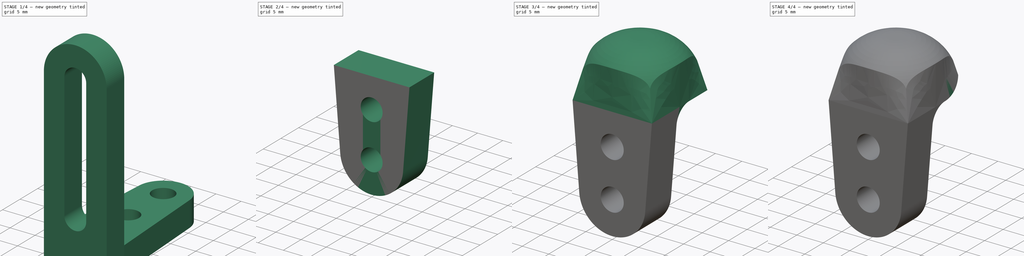
[diagram: build sequence overview — one tinted view per stage of 4, left to right]
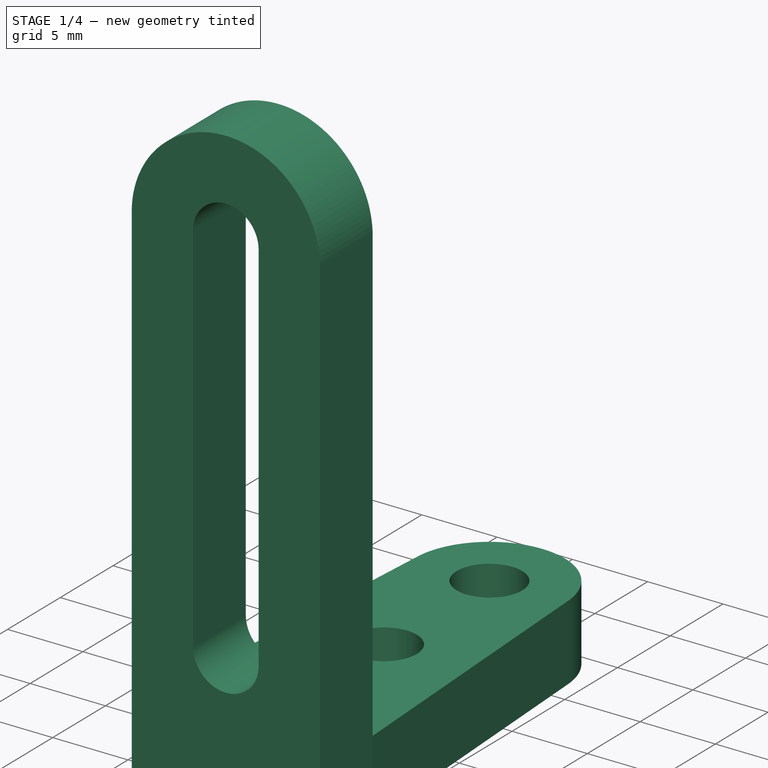
[diagram: stage 1 of 4 — iso view after this stage's code; geometry added in this stage tinted green]
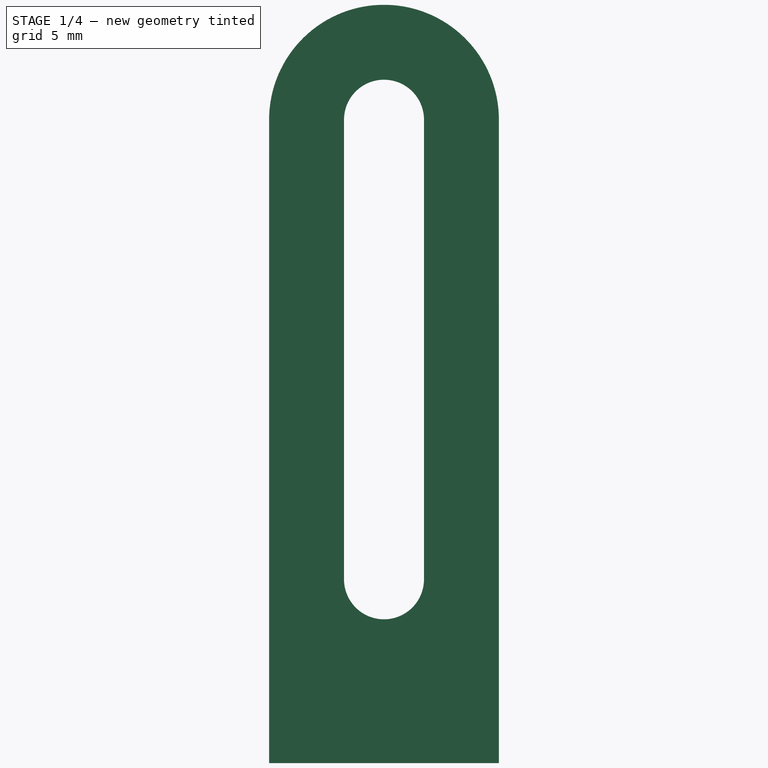
[diagram: stage 1 of 4 — front view after this stage's code; geometry added in this stage tinted green]
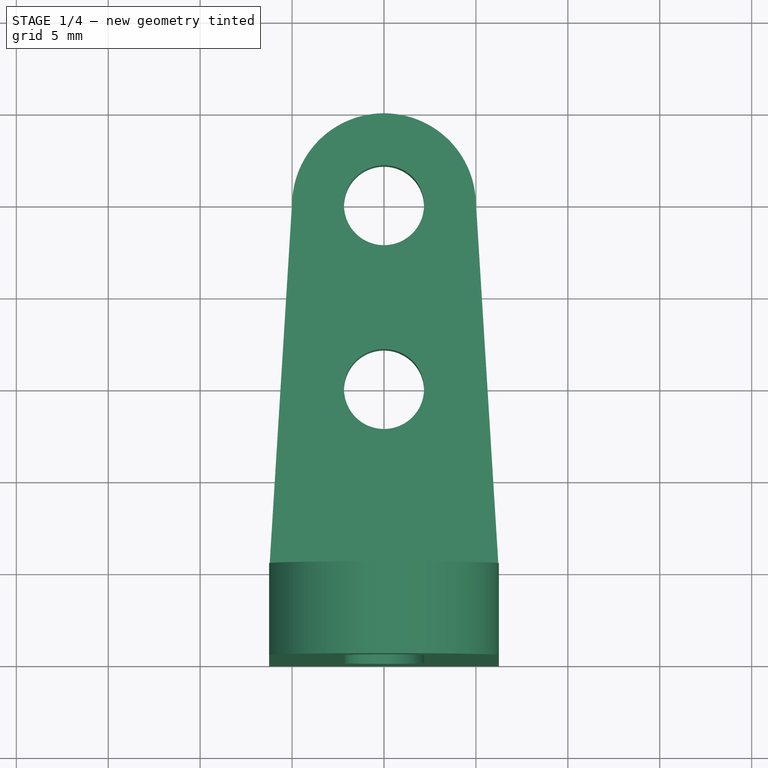
[diagram: stage 1 of 4 — top view after this stage's code; geometry added in this stage tinted green]
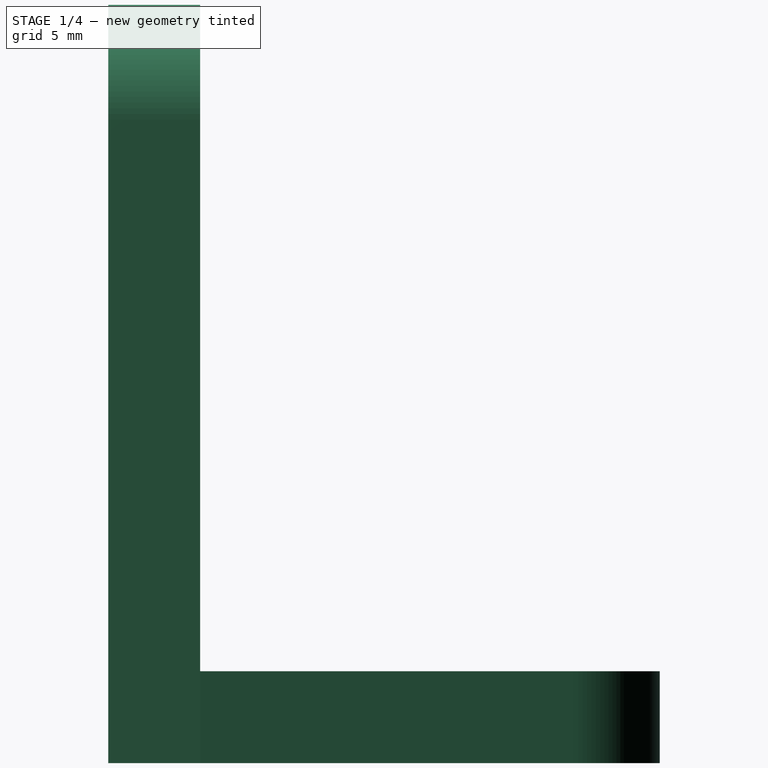
[diagram: stage 1 of 4 — right view after this stage's code; geometry added in this stage tinted green]
FCSTD DOCUMENT  (FreeCAD 1.1R40077 (Git))
Label: AdjustableSlider
License: All rights reserved
LicenseURL: https://en.wikipedia.org/wiki/All_rights_reserved
objects: Sketcher::SketchObject×8, PartDesign::Pad×4, App::Point×2, PartDesign::Body×2, Part::DatumPlane×2, PartDesign::Fillet×1, PartDesign::SubShapeBinder×1, PartDesign::AdditiveLoft×1, PartDesign::Groove×1, PartDesign::Mirrored×1, PartDesign::Pocket×1
note: 45 computed .brp shape members not serialized (recipe doc carries the construction recipe); baked Part::Feature solids carry a one-line shape summary decoded from their .brp
EXTERNAL_REF file=../Variables.FCStd obj=Spreadsheet

FEATURE [App::Point] Origin001
  Role = Origin
FEATURE [Sketcher::SketchObject] Sketch
  ArcFitTolerance = 1e-06
  AttachmentSupport = -> [XY_Plane]
  ExternalTypes = [0]
  FullyConstrained = true
  MakeInternals = false
  MapMode = 5
  expr: Constraints[2] = Variables#Spreadsheet.SupportSliderMountLineDist
  expr: Constraints[5] = Variables#Spreadsheet.M4ThroughBoreDiam
  sketch-geometry (7):
    g0: LineSegment [constr] StartX=0 StartY=1.416e-13 StartZ=0 EndX=0 EndY=20 EndZ=0
    g1: Circle CenterX=0 CenterY=20 CenterZ=0 NormalX=0 NormalY=0 NormalZ=1 AngleXU=0 Radius=2.175
    g2: Circle CenterX=0 CenterY=10 CenterZ=0 NormalX=0 NormalY=0 NormalZ=1 AngleXU=0 Radius=2.175
    g3: LineSegment StartX=-6.25 StartY=1.492e-13 StartZ=0 EndX=6.25 EndY=1.492e-13 EndZ=0
    g4: ArcOfCircle CenterX=0 CenterY=20 CenterZ=0 NormalX=0 NormalY=0 NormalZ=1 AngleXU=0 Radius=5 StartAngle=0.0619403 EndAngle=3.07965
    g5: LineSegment StartX=-4.99041 StartY=20.3095 StartZ=0 EndX=-6.25 EndY=1.492e-13 EndZ=0
    g6: LineSegment StartX=4.99041 StartY=20.3095 StartZ=0 EndX=6.25 EndY=1.492e-13 EndZ=0
  constraints (16):
    c: Coincident(g0,g-1)
    c: PointOnObject(g0,g-2)
    c: DistanceY(g0,g0) = 20
    c: Coincident(g1,g0)
    c: Symmetric(g0,g0,g2)
    c: Diameter(g1) = 4.35
    c: Equal(g2,g1)
    c: Horizontal(g3)
    c: DistanceX(g3,g3) = 12.5
    c: Symmetric(g3,g3,g0)
    c: Coincident(g4,g0)
    c: Coincident(g5,g3)
    c: Coincident(g6,g3)
    c: Tangent(g6,g4) = 1.5708
    c: Tangent(g5,g4) = -1.5708
    c: Radius(g4) = 5
FEATURE [PartDesign::Pad] Pad
  Direction = (0,0,1)
  Length = 5
  Length2 = 10
  Profile = -> Sketch
  ReferenceAxis = -> Sketch [N_Axis]
  Refine = true
  Suppressed = false
  Type = 0
FEATURE [Sketcher::SketchObject] Sketch001
  ArcFitTolerance = 1e-06
  AttachmentSupport = -> [Pad]
  ExternalGeometry = -> [Pad]
  ExternalTypes = [0]
  FullyConstrained = true
  MakeInternals = false
  MapMode = 5
  Placement = pos=(0,1.492e-13,0) rot=(1,0,0;1.5708rad)
  sketch-geometry (10):
    g0: LineSegment StartX=6.25 StartY=5 StartZ=0 EndX=6.25 EndY=35 EndZ=0
    g1: LineSegment StartX=-6.25 StartY=5 StartZ=0 EndX=-6.25 EndY=35 EndZ=0
    g2: ArcOfCircle CenterX=-5.02434e-11 CenterY=35 CenterZ=0 NormalX=0 NormalY=0 NormalZ=1 AngleXU=0 Radius=6.25 StartAngle=2e-16 EndAngle=3.14159
    g3: ArcOfCircle CenterX=-5.02434e-11 CenterY=35 CenterZ=0 NormalX=0 NormalY=0 NormalZ=1 AngleXU=0 Radius=2.175 StartAngle=-9e-16 EndAngle=3.14158
    g4: ArcOfCircle CenterX=4.82242e-11 CenterY=10 CenterZ=0 NormalX=0 NormalY=0 NormalZ=1 AngleXU=0 Radius=2.175 StartAngle=3.14159 EndAngle=6.28319
    g5: LineSegment StartX=-2.175 StartY=10 StartZ=0 EndX=-2.175 EndY=35 EndZ=0
    g6: LineSegment StartX=2.175 StartY=35 StartZ=0 EndX=2.175 EndY=10 EndZ=0
    g7: LineSegment StartX=-6.25 StartY=5 StartZ=0 EndX=-6.25 EndY=0 EndZ=0
    g8: LineSegment StartX=-6.25 StartY=0 StartZ=0 EndX=6.25 EndY=0 EndZ=0
    g9: LineSegment StartX=6.25 StartY=0 StartZ=0 EndX=6.25 EndY=5 EndZ=0
  constraints (25):
    c: Coincident(g0,g-3)
    c: Vertical(g0)
    c: Coincident(g1,g-3)
    c: Vertical(g1)
    c: Tangent(g2,g1) = 1.5708
    c: Tangent(g2,g0) = -1.5708
    c: Coincident(g3,g2)
    c: PointOnObject(g4,g-2)
    c: Vertical(g5)
    c: Vertical(g6)
    c: Diameter(g3) = 4.35
    c: Coincident(g5,g3)
    c: Tangent(g6,g3) = 1.5708
    c: Distance(g4,g-3) = 5
    c: DistanceY(g6,g6) = 25
    c: Tangent(g5,g4) = 1.5708
    c: Tangent(g6,g4) = 1.5708
    c: Coincident(g7,g1)
    c: PointOnObject(g7,g-1)
    c: Vertical(g7)
    c: Coincident(g8,g7)
    c: PointOnObject(g8,g-1)
    c: Coincident(g9,g8)
    c: Coincident(g9,g0)
    c: Vertical(g9)
FEATURE [PartDesign::Pad] Pad001
  BaseFeature = -> Pad
  Direction = (0,-1,2e-16)
  Length = 5
  Length2 = 10
  Profile = -> Sketch001
  ReferenceAxis = -> Sketch001 [N_Axis]
  Refine = true
  Suppressed = false
  Type = 0
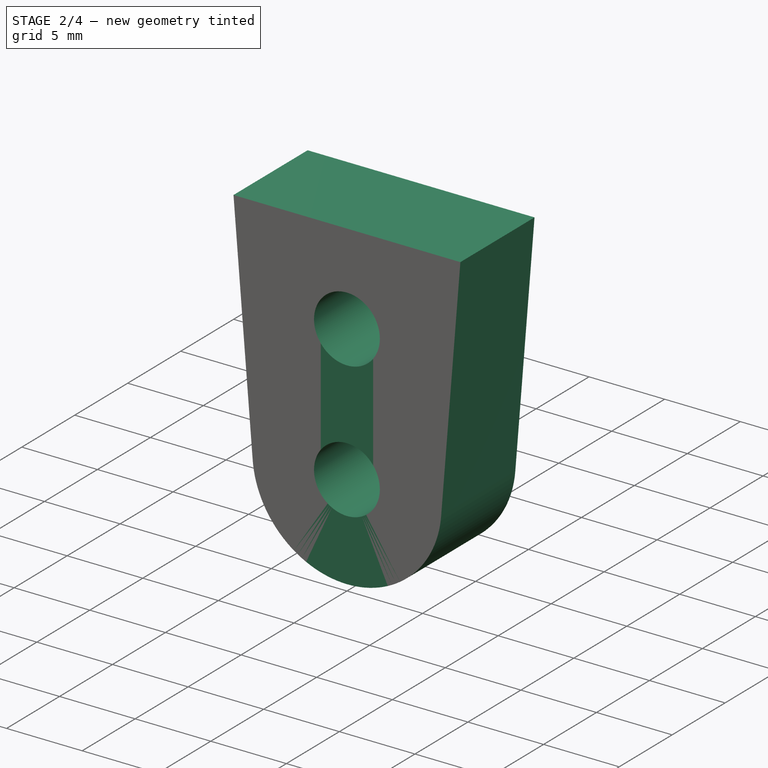
[diagram: stage 2 of 4 — iso view after this stage's code; geometry added in this stage tinted green]
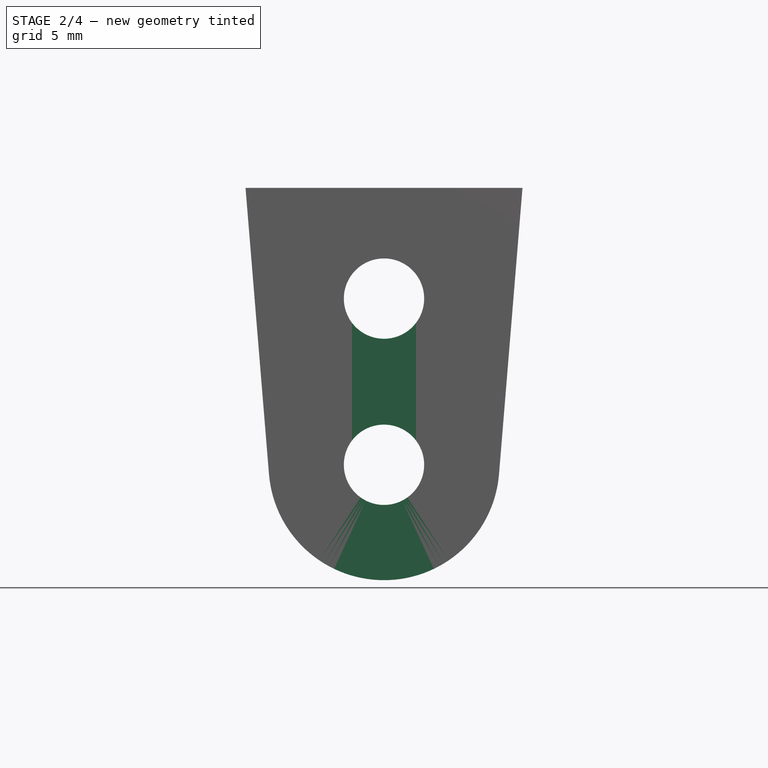
[diagram: stage 2 of 4 — front view after this stage's code; geometry added in this stage tinted green]
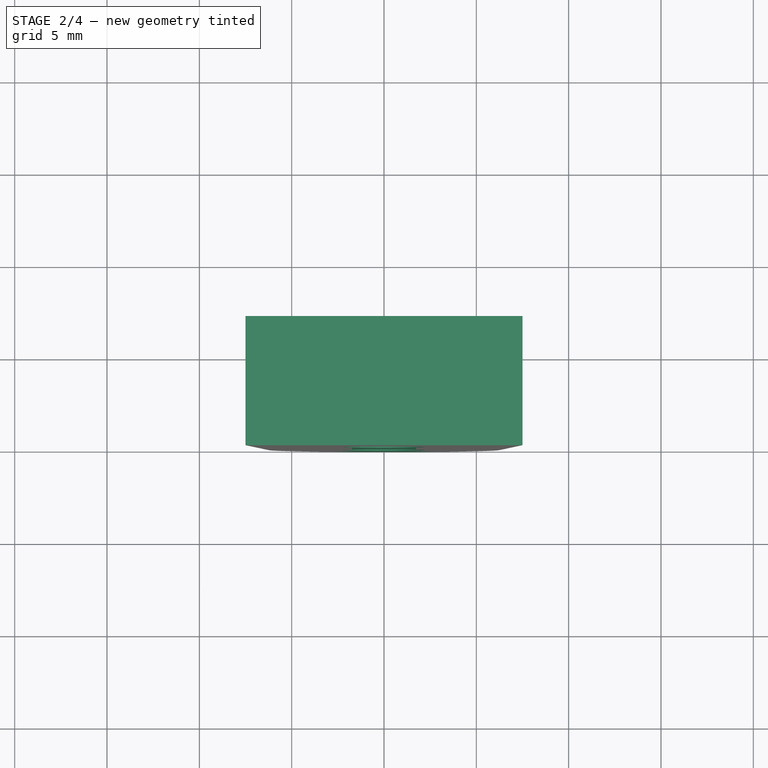
[diagram: stage 2 of 4 — top view after this stage's code; geometry added in this stage tinted green]
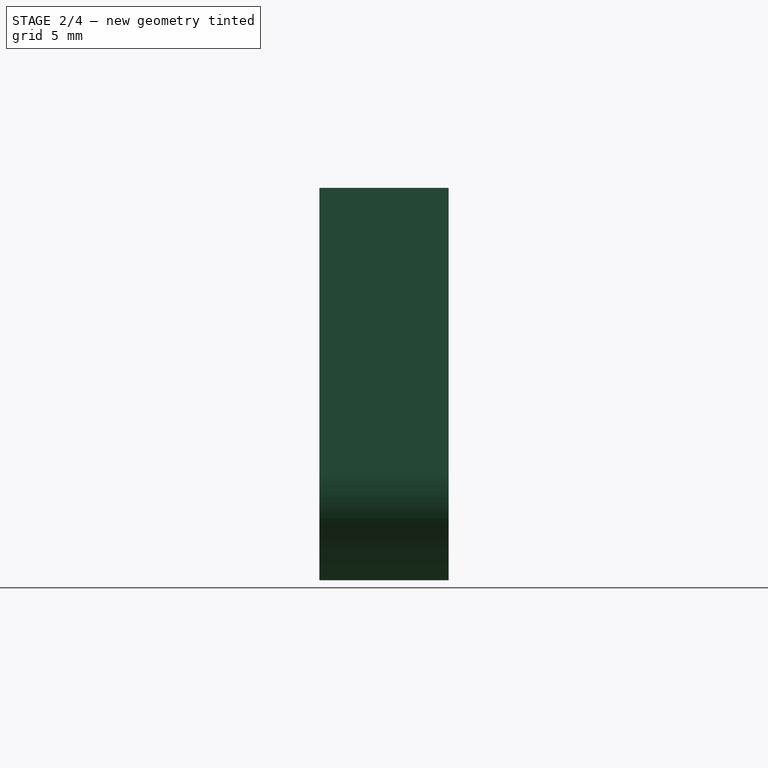
[diagram: stage 2 of 4 — right view after this stage's code; geometry added in this stage tinted green]
FEATURE [PartDesign::Fillet] Fillet
  Base = -> Pad001 [Edge11]
  BaseFeature = -> Pad001
  Radius = 2
  Refine = true
  SupportTransform = false
  Suppressed = false
  UseAllEdges = false
FEATURE [PartDesign::Body] Body  label="Slider Base"
  AllowCompound = true
  Group = -> [Sketch,Pad,Sketch001,Pad001,Fillet]
  Origin = -> Origin
  Tip = -> Fillet
FEATURE [App::Point] Origin003
  Role = Origin
FEATURE [PartDesign::SubShapeBinder] Binder
  BindCopyOnChange = 0
  BindMode = 0
  ClaimChildren = false
  Context = -> Body001 [Binder.]
  Fuse = false
  MakeFace = true
  OffsetFill = false
  OffsetIntersection = false
  OffsetJoinType = 0
  OffsetOpenResult = false
  PartialLoad = false
  Refine = true
  Relative = true
  Support = -> [Body]
  _Version = 2
FEATURE [Sketcher::SketchObject] Sketch002
  ArcFitTolerance = 1e-06
  AttachmentSupport = -> [Binder]
  ExternalGeometry = -> [Binder]
  ExternalTypes = [0,0]
  FullyConstrained = true
  MakeInternals = false
  MapMode = 5
  Placement = pos=(0,1.493e-13,0) rot=(0,0.707107,0.707107;3.14159rad)
  sketch-geometry (8):
    g0: LineSegment [constr] StartX=5.02434e-11 StartY=35 StartZ=0 EndX=0 EndY=26 EndZ=0
    g1: LineSegment StartX=-7.5 StartY=41 StartZ=0 EndX=7.5 EndY=41 EndZ=0
    g2: GeomPoint X=0 Y=41 Z=0
    g3: ArcOfCircle CenterX=0 CenterY=26 CenterZ=0 NormalX=0 NormalY=0 NormalZ=1 AngleXU=0 Radius=6.25 StartAngle=3.22335 EndAngle=6.20143
    g4: LineSegment StartX=6.22912 StartY=25.4896 StartZ=0 EndX=7.5 EndY=41 EndZ=0
    g5: LineSegment StartX=-7.5 StartY=41 StartZ=0 EndX=-6.22912 EndY=25.4896 EndZ=0
    g6: Circle CenterX=0 CenterY=26 CenterZ=0 NormalX=0 NormalY=0 NormalZ=1 AngleXU=0 Radius=2.175
    g7: ArcOfCircle CenterX=-3.31436e-10 CenterY=35 CenterZ=0 NormalX=0 NormalY=0 NormalZ=1 AngleXU=0 Radius=2.175 StartAngle=3.14161 EndAngle=6.28318
  constraints (19):
    c: Distance(g0) = 9
    c: PointOnObject(g0,g-2)
    c: Coincident(g0,g-3)
    c: Horizontal(g1)
    c: DistanceX(g1,g1) = 15
    c: Symmetric(g1,g1,g2)
    c: PointOnObject(g2,g-2)
    c: Equal(g3,g-4)
    c: Coincident(g3,g0)
    c: Coincident(g4,g1)
    c: Coincident(g5,g1)
    c: Tangent(g5,g3) = -1.5708
    c: Tangent(g4,g3) = -1.5708
    c: Distance(g0,g1) = 15
    c: Coincident(g6,g0)
    c: Equal(g6,g-3)
    c: Coincident(g7,g-3)
    c: Coincident(g7,g-3)
    c: Equal(g7,g-3)
FEATURE [PartDesign::Pad] Pad002
  Direction = (0,1,-2e-16)
  Length = 7
  Length2 = 10
  Profile = -> Sketch002
  ReferenceAxis = -> Sketch002 [N_Axis]
  Refine = true
  Suppressed = false
  Type = 0
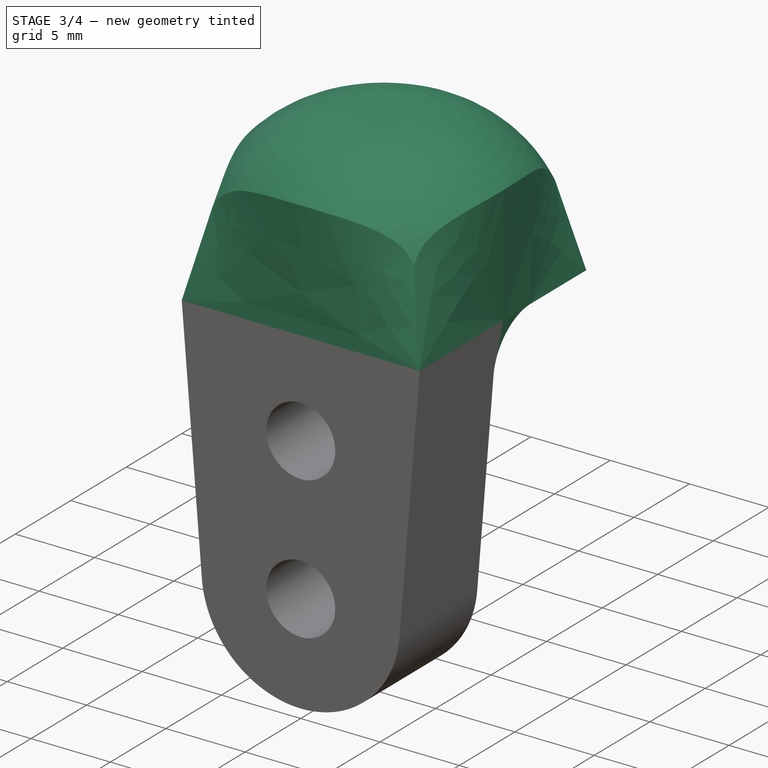
[diagram: stage 3 of 4 — iso view after this stage's code; geometry added in this stage tinted green]
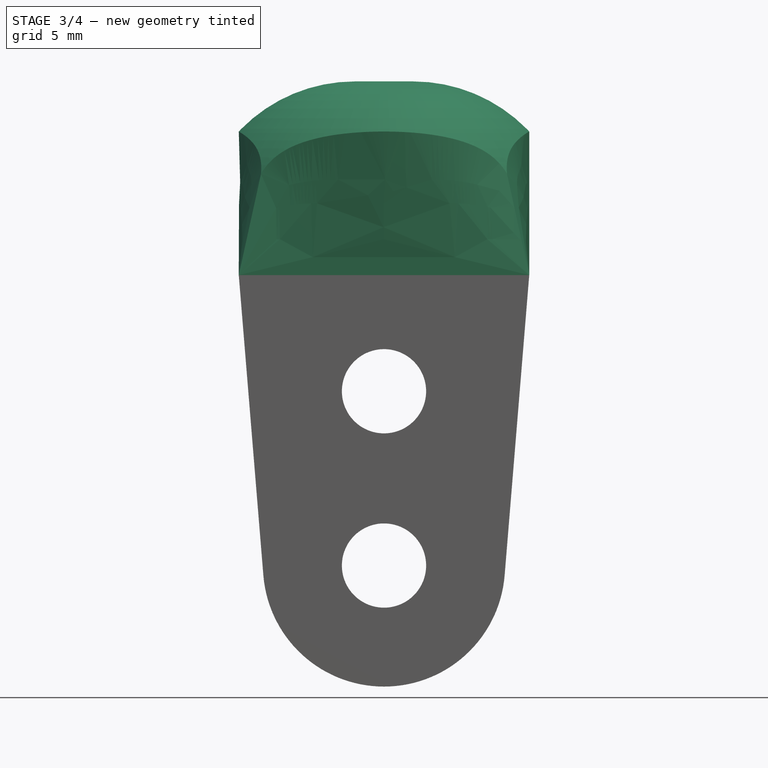
[diagram: stage 3 of 4 — front view after this stage's code; geometry added in this stage tinted green]
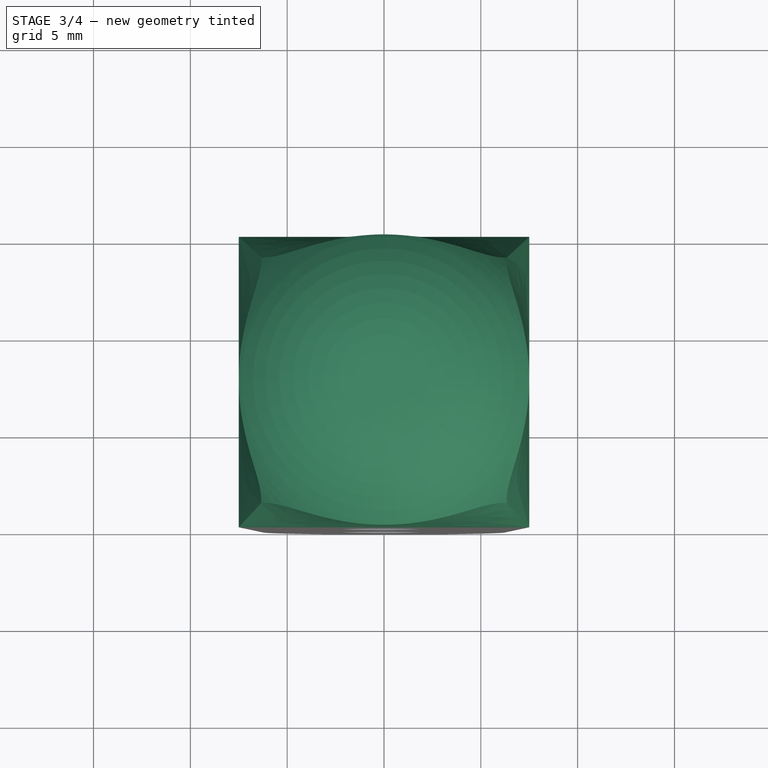
[diagram: stage 3 of 4 — top view after this stage's code; geometry added in this stage tinted green]
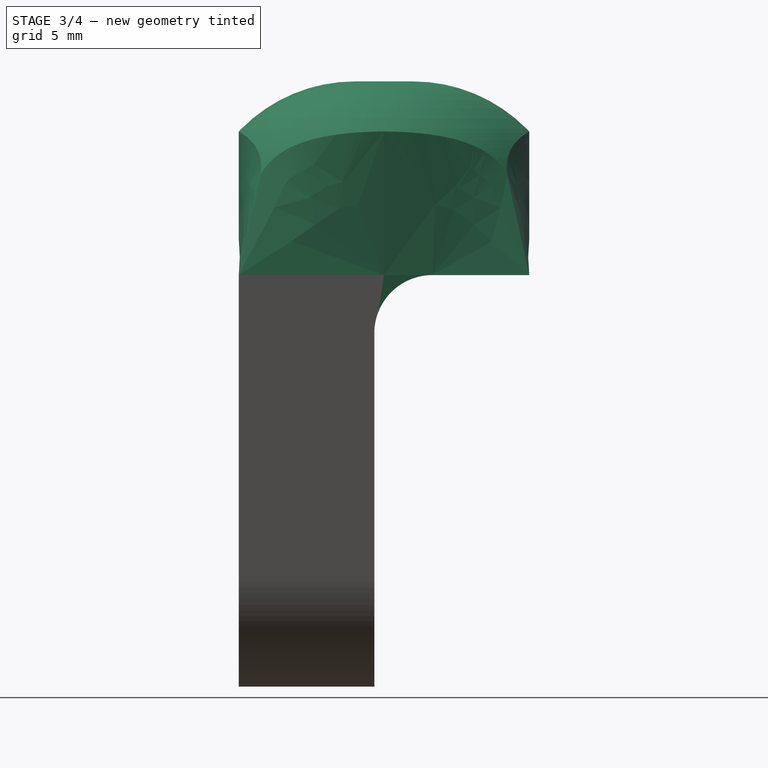
[diagram: stage 3 of 4 — right view after this stage's code; geometry added in this stage tinted green]
FEATURE [Sketcher::SketchObject] Sketch003
  ArcFitTolerance = 1e-06
  AttachmentSupport = -> [Pad002]
  ExternalGeometry = -> [Pad002]
  ExternalTypes = [0]
  FullyConstrained = true
  MakeInternals = false
  MapMode = 5
  Placement = pos=(0,9e-15,41) rot=(0,0,1;0rad)
  sketch-geometry (3):
    g0: LineSegment StartX=7.5 StartY=1.549e-13 StartZ=0 EndX=7.5 EndY=15 EndZ=0
    g1: LineSegment StartX=7.5 StartY=15 StartZ=0 EndX=-7.5 EndY=15 EndZ=0
    g2: LineSegment StartX=-7.5 StartY=15 StartZ=0 EndX=-7.5 EndY=0 EndZ=0
  constraints (8):
    c: Coincident(g0,g-3)
    c: Vertical(g0)
    c: Coincident(g1,g0)
    c: Horizontal(g1)
    c: Coincident(g2,g1)
    c: Coincident(g2,g-3)
    c: Equal(g1,g0)
    c: Vertical(g2)
FEATURE [Part::DatumPlane] DatumPlane
  AttachmentOffset = pos=(0,0,10) rot=(0,0,1;0rad)
  AttachmentSupport = -> [Pad002]
  MapMode = 5
  Placement = pos=(0,9e-15,51) rot=(0,0,1;0rad)
FEATURE [Sketcher::SketchObject] Sketch004
  ArcFitTolerance = 1e-06
  AttachmentSupport = -> [DatumPlane]
  ExternalGeometry = -> [Sketch003]
  ExternalTypes = [0,0]
  FullyConstrained = true
  MakeInternals = false
  MapMode = 5
  Placement = pos=(0,9e-15,51) rot=(0,0,1;0rad)
  sketch-geometry (3):
    g0: GeomPoint [constr] X=7.5 Y=7.5 Z=0
    g1: GeomPoint [constr] X=1e-16 Y=15 Z=0
    g2: Circle CenterX=0 CenterY=7.5 CenterZ=0 NormalX=0 NormalY=0 NormalZ=1 AngleXU=0 Radius=7.5
  constraints (5):
    c: Symmetric(g-4,g-4,g0)
    c: Symmetric(g-3,g-3,g1)
    c: PointOnObject(g2,g-2)
    c: PointOnObject(g1,g2)
    c: Horizontal(g2,g0)
FEATURE [PartDesign::AdditiveLoft] AdditiveLoft
  BaseFeature = -> Pad002
  Closed = false
  Profile = -> Sketch004
  Refine = true
  Ruled = false
  Sections = -> [Sketch003]
  Suppressed = false
FEATURE [Part::DatumPlane] DatumPlane001
  AttachmentOffset = pos=(0,0,0) rot=(1,0,0;1.5708rad)
  AttachmentSupport = -> [AdditiveLoft]
  MapMode = 11
  Placement = pos=(-9e-16,7.5,51) rot=(0.281085,0.678598,0.678598;2.59356rad)
FEATURE [Sketcher::SketchObject] Sketch005
  ArcFitTolerance = 1e-06
  AttachmentSupport = -> [DatumPlane001]
  ExternalGeometry = -> [AdditiveLoft]
  ExternalTypes = [0,0]
  FullyConstrained = true
  MakeInternals = false
  MapMode = 5
  Placement = pos=(-4e-16,7.5,51) rot=(0.281085,0.678598,0.678598;2.59356rad)
  sketch-geometry (3):
    g0: ArcOfCircle CenterX=1.5 CenterY=-8.25154 CenterZ=0 NormalX=0 NormalY=0 NormalZ=1 AngleXU=0 Radius=8.25154 StartAngle=0.434914 EndAngle=1.5708
    g1: LineSegment StartX=1.5 StartY=0 StartZ=0 EndX=7.5 EndY=0 EndZ=0
    g2: LineSegment StartX=7.5 StartY=0 StartZ=0 EndX=8.98337 EndY=-4.77489 EndZ=0
  constraints (8):
    c: PointOnObject(g0,g-4)
    c: Tangent(g0,g-3) = -1.5708
    c: DistanceX(g-1,g0) = 1.5
    c: Distance(g0,g-4) = 5
    c: Coincident(g0,g1)
    c: Coincident(g-4,g1)
    c: Coincident(g2,g1)
    c: Coincident(g2,g0)
FEATURE [PartDesign::Groove] Groove
  Angle = 360
  Angle2 = 60
  Axis = (-1e-16,-1e-16,1)
  Base = (-1.3e-15,7.5,51)
  BaseFeature = -> AdditiveLoft
  Profile = -> Sketch005
  ReferenceAxis = -> Sketch005 [V_Axis]
  Refine = true
  Suppressed = false
  Type = 0
FEATURE [Sketcher::SketchObject] Sketch006
  ArcFitTolerance = 1e-06
  AttachmentSupport = -> [YZ_Plane001]
  ExternalGeometry = -> [Groove]
  ExternalTypes = [0,0]
  FullyConstrained = true
  MakeInternals = false
  MapMode = 5
  Placement = pos=(0,0,0) rot=(0.57735,0.57735,0.57735;2.0944rad)
  sketch-geometry (3):
    g0: ArcOfCircle CenterX=10 CenterY=38 CenterZ=0 NormalX=0 NormalY=0 NormalZ=1 AngleXU=0 Radius=3 StartAngle=1.5708 EndAngle=3.14159
    g1: LineSegment StartX=7 StartY=38 StartZ=0 EndX=7 EndY=41 EndZ=0
    g2: LineSegment StartX=7 StartY=41 StartZ=0 EndX=10 EndY=41 EndZ=0
  constraints (7):
    c: Tangent(g0,g-3) = -1.5708
    c: Tangent(g0,g-4) = 1.5708
    c: Radius(g0) = 3
    c: Coincident(g0,g1)
    c: Coincident(g1,g2)
    c: Coincident(g2,g0)
    c: Coincident(g1,g-4)
FEATURE [PartDesign::Pad] Pad003
  BaseFeature = -> Groove
  Direction = (1,0,0)
  Length = 25
  Length2 = 10
  Midplane = true
  Profile = -> Sketch006
  ReferenceAxis = -> Sketch006 [N_Axis]
  Refine = true
  Suppressed = false
  Type = 3
  UpToFace = -> Groove [Face5]
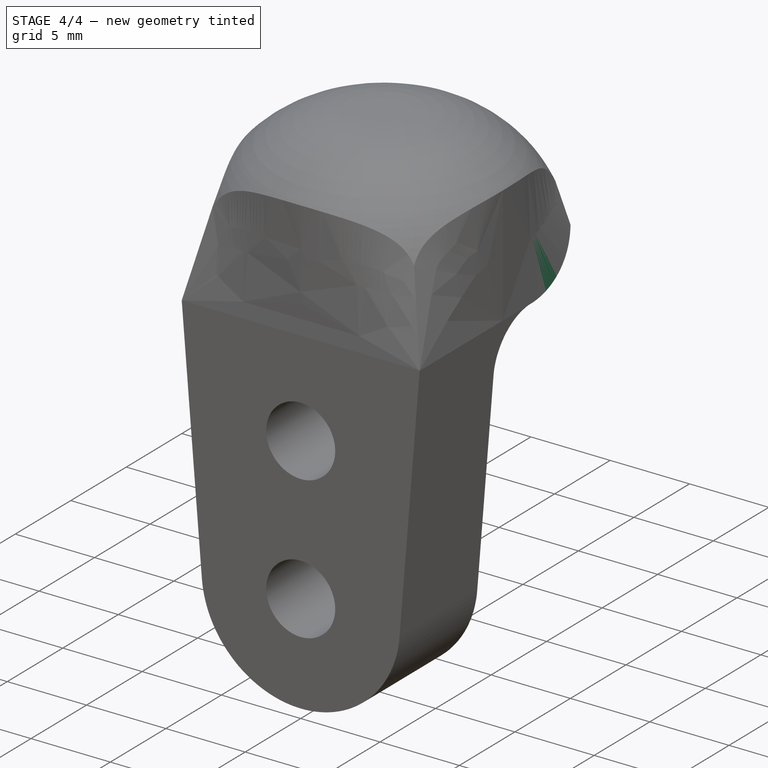
[diagram: stage 4 of 4 — iso view after this stage's code; geometry added in this stage tinted green]
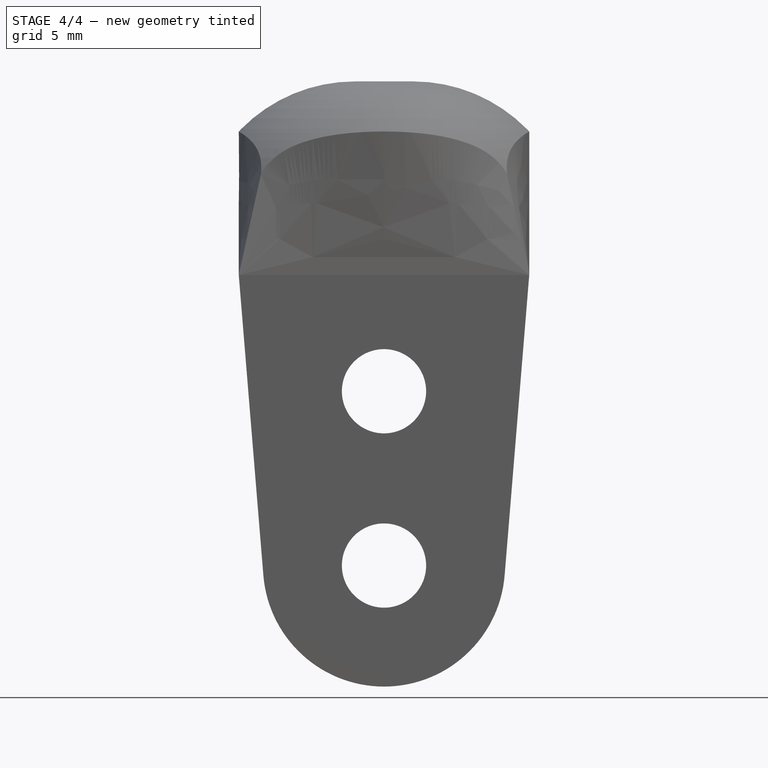
[diagram: stage 4 of 4 — front view after this stage's code; geometry added in this stage tinted green]
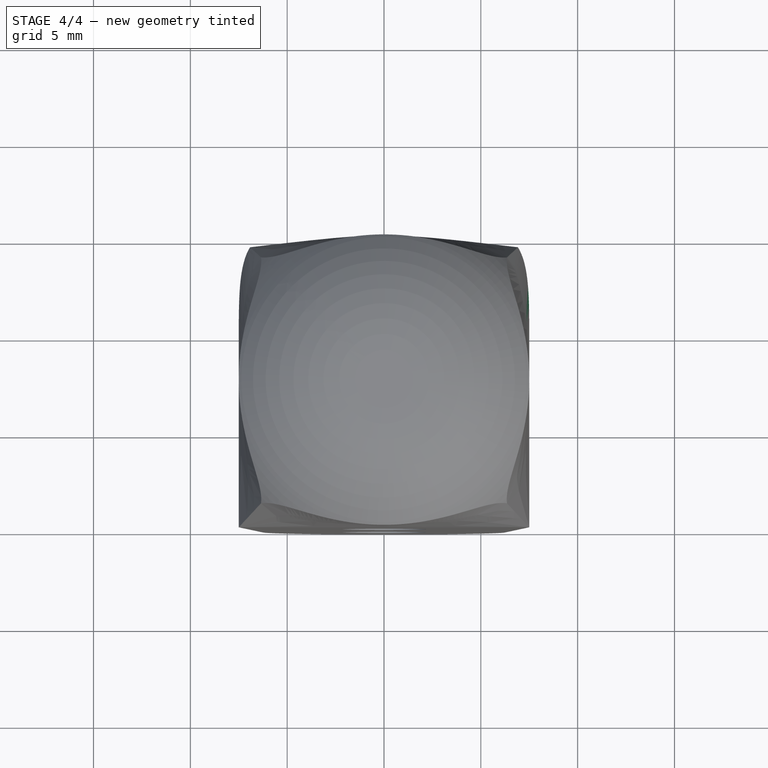
[diagram: stage 4 of 4 — top view after this stage's code; geometry added in this stage tinted green]
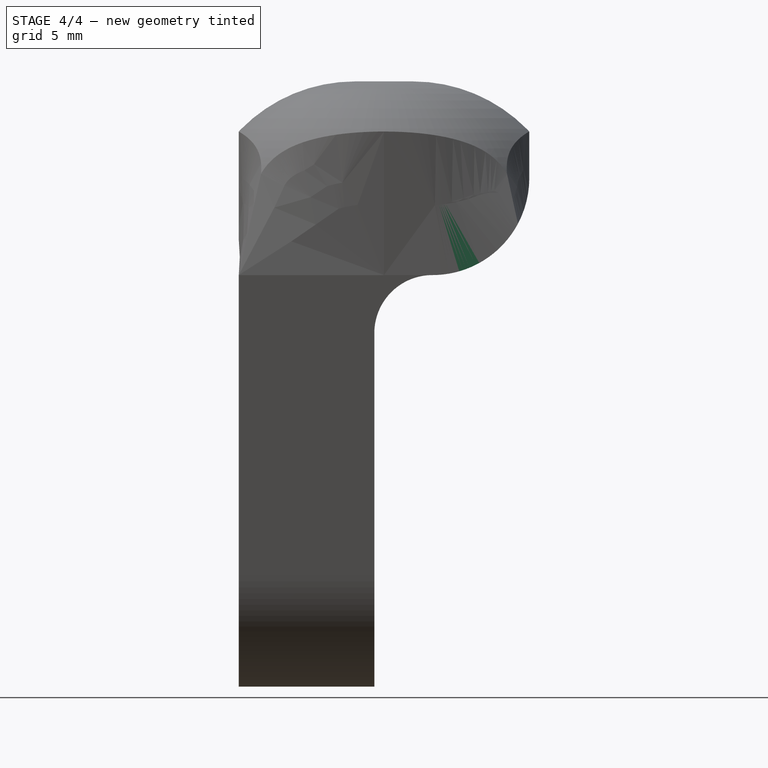
[diagram: stage 4 of 4 — right view after this stage's code; geometry added in this stage tinted green]
FEATURE [PartDesign::Mirrored] Mirrored
  BaseFeature = -> Pad003
  MirrorPlane = -> YZ_Plane001
  Originals = -> [Pad003]
  Refine = true
  Suppressed = false
  TransformMode = 0
FEATURE [Sketcher::SketchObject] Sketch007
  ArcFitTolerance = 1e-06
  AttachmentSupport = -> [YZ_Plane001]
  ExternalGeometry = -> [Mirrored]
  ExternalTypes = [0,0]
  FullyConstrained = true
  MakeInternals = false
  MapMode = 5
  Placement = pos=(0,0,0) rot=(0.57735,0.57735,0.57735;2.0944rad)
  sketch-geometry (3):
    g0: ArcOfCircle CenterX=10 CenterY=46 CenterZ=0 NormalX=0 NormalY=0 NormalZ=1 AngleXU=0 Radius=5 StartAngle=4.71239 EndAngle=6.28319
    g1: LineSegment StartX=10 StartY=41 StartZ=0 EndX=15 EndY=41 EndZ=0
    g2: LineSegment StartX=15 StartY=41 StartZ=0 EndX=15 EndY=46 EndZ=0
  constraints (6):
    c: Vertical(g2)
    c: Coincident(g1,g-19)
    c: Tangent(g0,g1) = -1.5708
    c: Coincident(g0,g-3)
    c: Coincident(g2,g1)
    c: Tangent(g2,g0) = -1.5708
FEATURE [PartDesign::Pocket] Pocket
  BaseFeature = -> Mirrored
  Direction = (-1,0,0)
  Length = 5
  Length2 = 5
  Midplane = true
  Profile = -> Sketch007
  ReferenceAxis = -> Sketch007 [N_Axis]
  Refine = true
  Suppressed = false
  Type = 1
FEATURE [PartDesign::Body] Body001  label="Slider Piece"
  AllowCompound = true
  Group = -> [Binder,Sketch002,Pad002,Sketch003,DatumPlane,Sketch004,AdditiveLoft,DatumPlane001,Sketch005,Groove,Sketch006,Pad003,Mirrored,Sketch007,Pocket]
  Origin = -> Origin002
  Tip = -> Pocket
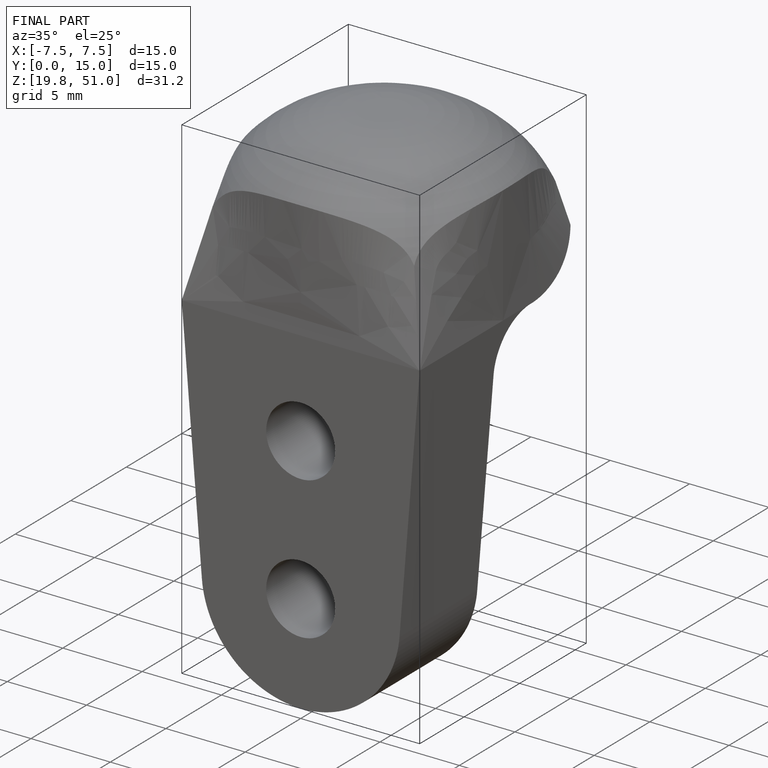
[diagram: finished part — iso view with bounding-box wireframe]
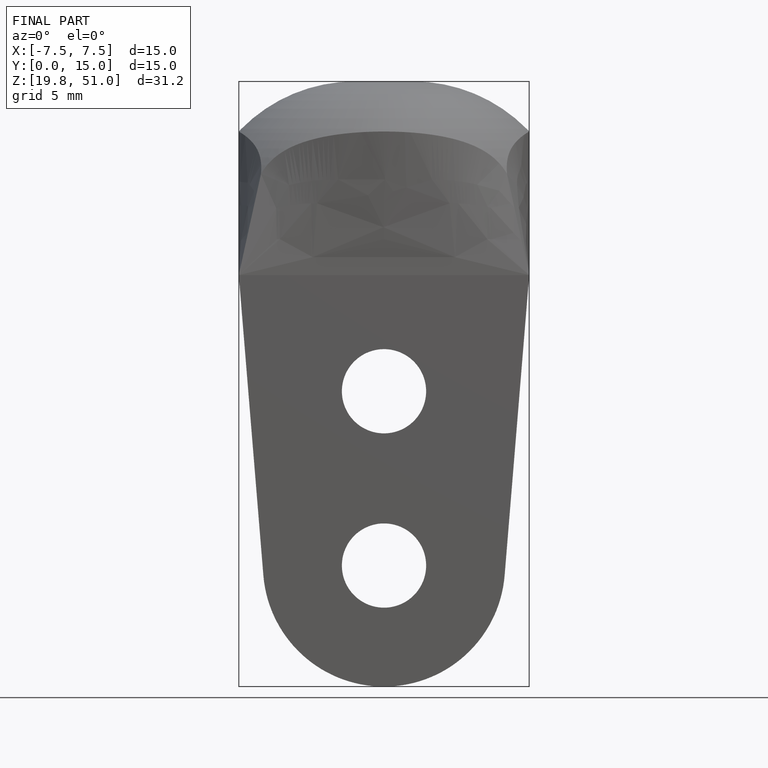
[diagram: finished part — front view with bounding-box wireframe]
